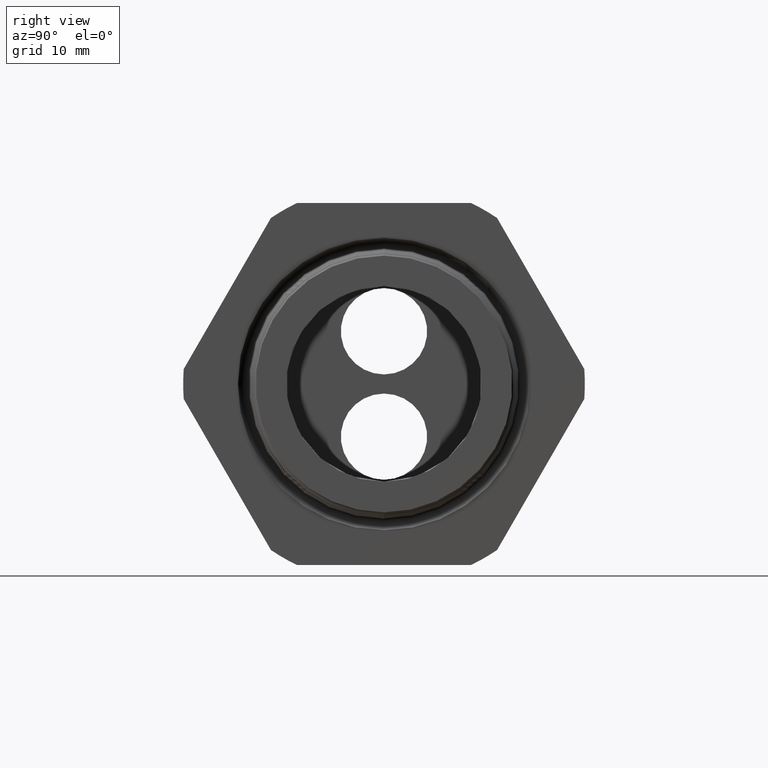
[diagram: clean part render]
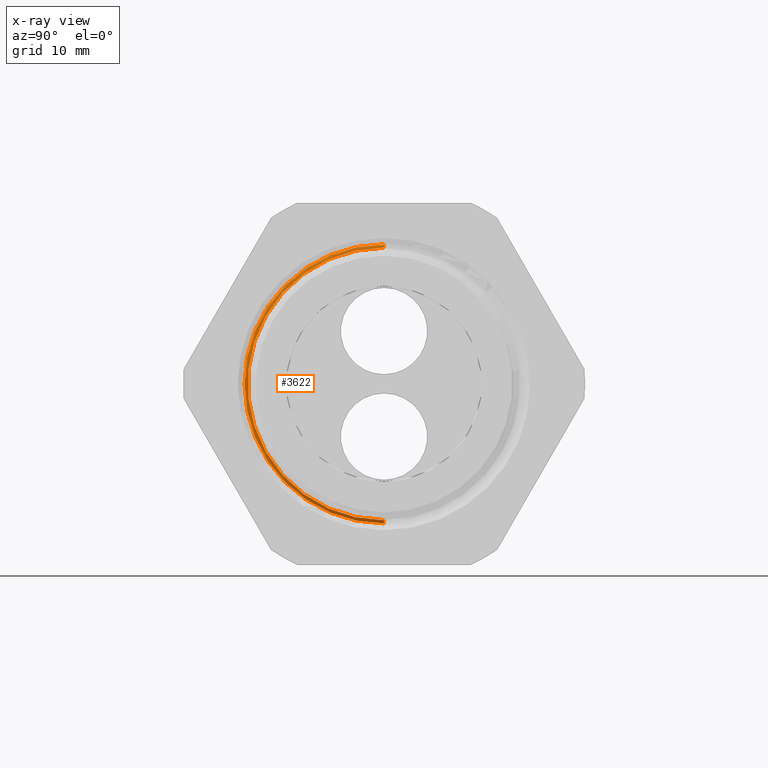
[diagram: x-ray — body ghosted, one internal face saturated and labeled with its STEP entity id]
A machine part, right view, then the same camera in x-ray: the body is ghosted and one INTERNAL B-rep face — a face not visible from any outside direction — is saturated and labeled: STEP entity #3622.
In plain terms, the highlighted conical surface has half-angle 62 deg.
Its self-contained STEP definition (entity closure, byte-faithful):
#25 = CARTESIAN_POINT ( 'NONE',  ( -0.6067624839723554400, 0.0000000000000000000, 0.4895114984791283900 ) ) ;
#26 = DIRECTION ( 'NONE',  ( -0.4694715627859013000, 0.0000000000000000000, 0.8829475928589214400 ) ) ;
#27 = VECTOR ( 'NONE', #26, 39.37007874015748100 ) ;
#28 = CARTESIAN_POINT ( 'NONE',  ( -0.6203149606299212000, 0.0000000000000000000, 0.5150000000000000100 ) ) ;
#29 = LINE ( 'NONE', #28, #27 ) ;
#45 = DIRECTION ( 'NONE',  ( -0.4694715627859013000, 1.081298943409538600E-016, -0.8829475928589214400 ) ) ;
#46 = VECTOR ( 'NONE', #45, 39.37007874015748100 ) ;
#47 = CARTESIAN_POINT ( 'NONE',  ( -0.6203149606299212000, 6.306931015608869800E-017, -0.5150000000000000100 ) ) ;
#48 = LINE ( 'NONE', #47, #46 ) ;
#49 = CARTESIAN_POINT ( 'NONE',  ( -0.6129365566449482800, 6.140457212240825100E-017, -0.5011232403534451300 ) ) ;
#85 = CARTESIAN_POINT ( 'NONE',  ( -0.6129365566449482800, 0.0000000000000000000, 0.5011232403534451300 ) ) ;
#706 = CARTESIAN_POINT ( 'NONE',  ( -0.6203149606299212000, 0.0000000000000000000, 0.0000000000000000000 ) ) ;
#828 = DIRECTION ( 'NONE',  ( 0.0000000000000000000, 0.0000000000000000000, 1.000000000000000000 ) ) ;
#829 = DIRECTION ( 'NONE',  ( 1.000000000000000000, 0.0000000000000000000, 0.0000000000000000000 ) ) ;
#830 = CARTESIAN_POINT ( 'NONE',  ( -0.6129365566449482800, 0.0000000000000000000, 0.0000000000000000000 ) ) ;
#831 = AXIS2_PLACEMENT_3D ( 'NONE', #830, #829, #828 ) ;
#832 = CIRCLE ( 'NONE', #831, 0.5011232403534451300 ) ;
#958 = AXIS2_PLACEMENT_3D ( 'NONE', #706, #2157, #2160 ) ;
#1446 = CONICAL_SURFACE ( 'NONE', #958, 0.5150000000000000100, 1.082104136236472500 ) ;
#1451 = FACE_OUTER_BOUND ( 'NONE', #3623, .T. ) ;
#1505 = DIRECTION ( 'NONE',  ( 0.0000000000000000000, 0.0000000000000000000, -1.000000000000000000 ) ) ;
#1506 = DIRECTION ( 'NONE',  ( 1.000000000000000000, 0.0000000000000000000, 0.0000000000000000000 ) ) ;
#1507 = CARTESIAN_POINT ( 'NONE',  ( -0.6067624839723554400, 0.0000000000000000000, 0.0000000000000000000 ) ) ;
#1508 = AXIS2_PLACEMENT_3D ( 'NONE', #1507, #1506, #1505 ) ;
#1509 = CIRCLE ( 'NONE', #1508, 0.4895114984791283900 ) ;
#2157 = DIRECTION ( 'NONE',  ( -1.000000000000000000, 0.0000000000000000000, 0.0000000000000000000 ) ) ;
#2160 = DIRECTION ( 'NONE',  ( 0.0000000000000000000, 0.0000000000000000000, 1.000000000000000000 ) ) ;
#2851 = VERTEX_POINT ( 'NONE', #6182 ) ;
#2884 = VERTEX_POINT ( 'NONE', #49 ) ;
#2885 = EDGE_CURVE ( 'NONE', #2851, #2884, #48, .T. ) ;
#2893 = EDGE_CURVE ( 'NONE', #2894, #2897, #29, .T. ) ;
#2894 = VERTEX_POINT ( 'NONE', #25 ) ;
#2897 = VERTEX_POINT ( 'NONE', #85 ) ;
#3333 = EDGE_CURVE ( 'NONE', #2897, #2884, #832, .T. ) ;
#3622 = ADVANCED_FACE ( 'NONE', ( #1451 ), #1446, .T. ) ;
#3623 = EDGE_LOOP ( 'NONE', ( #3624, #3625, #3627, #3628 ) ) ;
#3624 = ORIENTED_EDGE ( 'NONE', *, *, #2885, .F. ) ;
#3625 = ORIENTED_EDGE ( 'NONE', *, *, #3626, .F. ) ;
#3626 = EDGE_CURVE ( 'NONE', #2894, #2851, #1509, .T. ) ;
#3627 = ORIENTED_EDGE ( 'NONE', *, *, #2893, .T. ) ;
#3628 = ORIENTED_EDGE ( 'NONE', *, *, #3333, .T. ) ;
#6182 = CARTESIAN_POINT ( 'NONE',  ( -0.6067624839723554400, 6.065888310177427100E-017, -0.4895114984791283900 ) ) ;